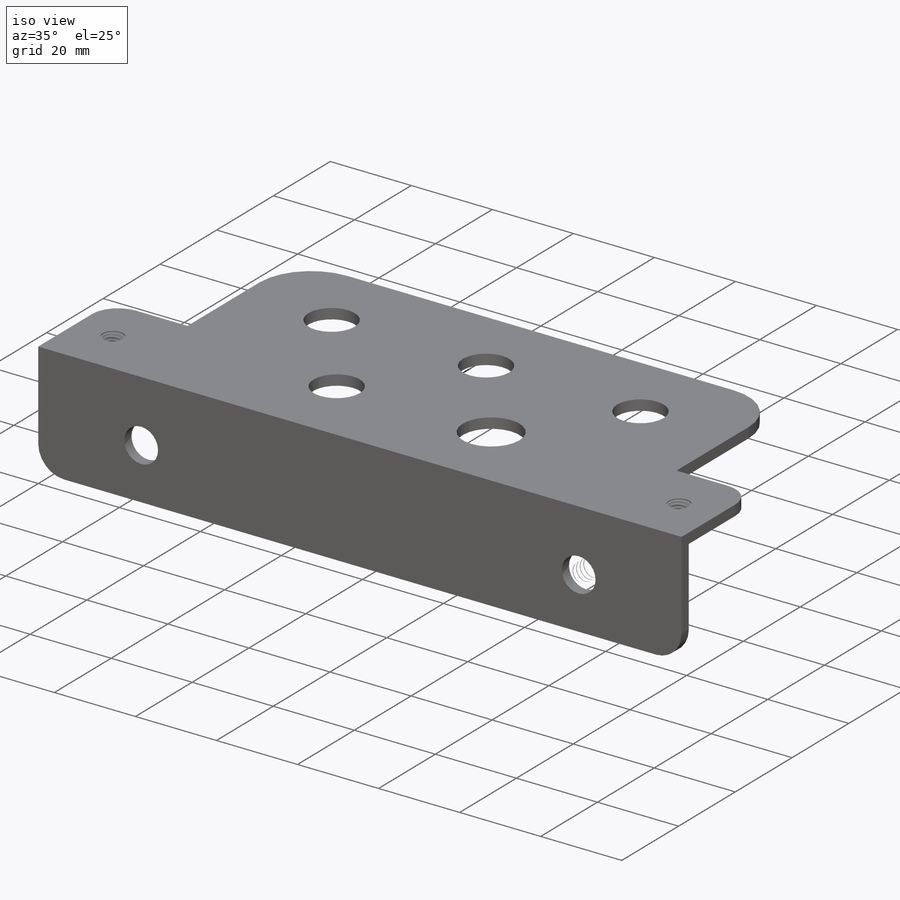
[diagram: iso view]
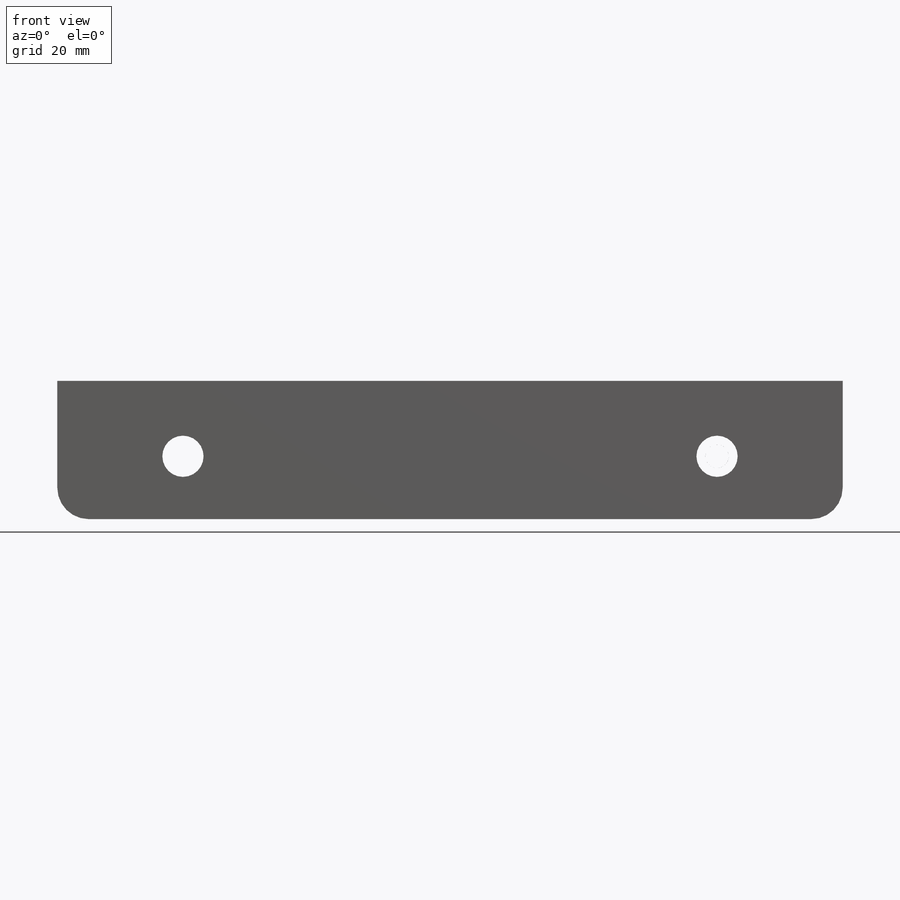
[diagram: front view]
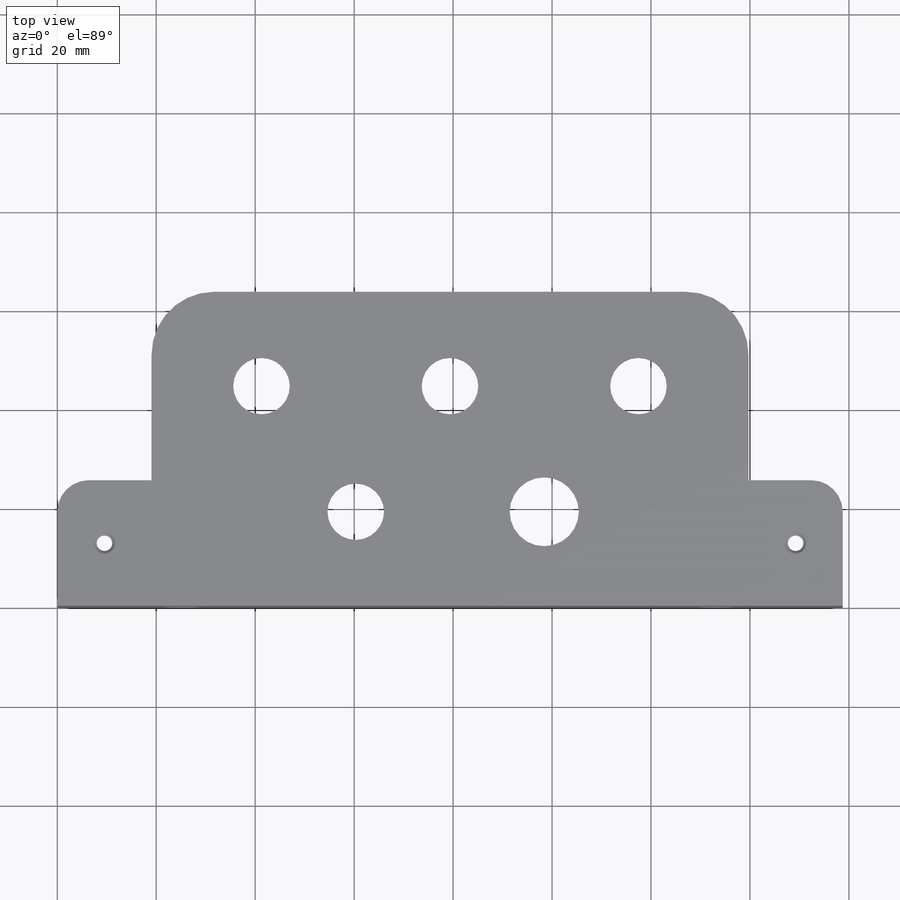
[diagram: top view]
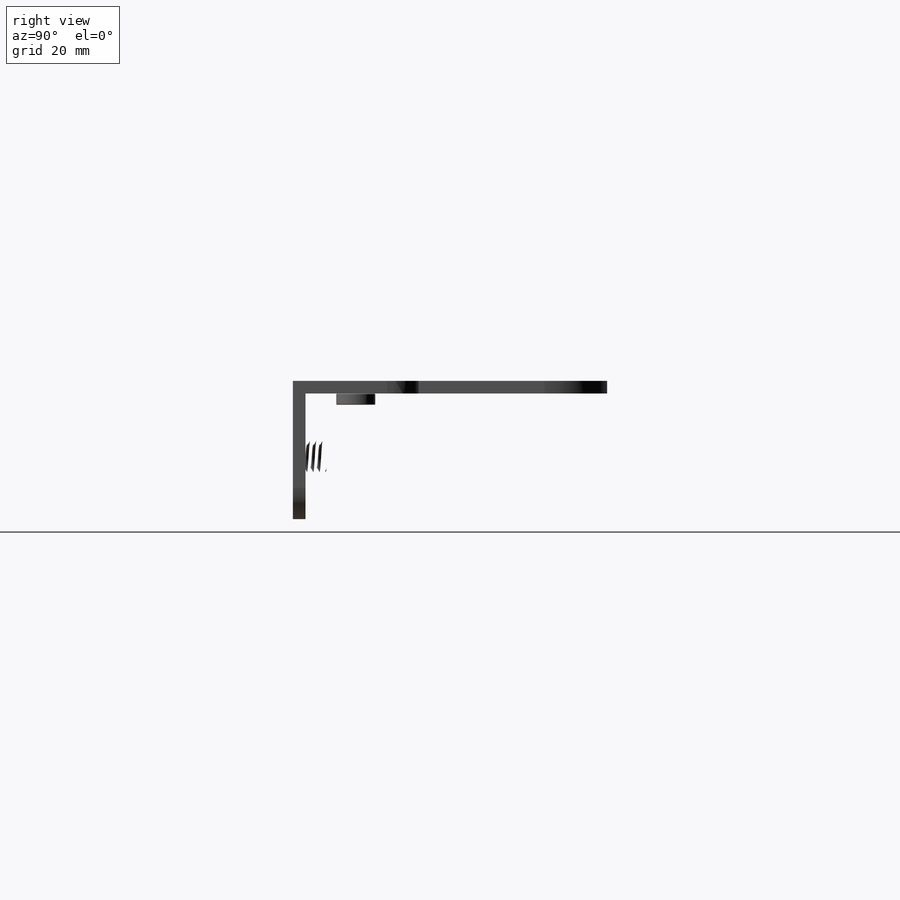
[diagram: right view]
SOLIDWORKS PART (.sldprt)
format: sldprt  version: not decoded by parser v0  size: 2,065,408 bytes
history: native  units: mm
features: move_body x4, sketch x3, extrude x2, fillet x2, material x1, cut_extrude x1 + 4 further entries (+32 scaffold rows collapsed; 20 parser-record rows omitted)
feature tree (69):
  scaffold x32  (default folders/planes/origin — collapsed)
  material  "Material <not specified>"
  sketch  "Sketch1"  dims[c1.D8=5.08mm c1.D12=5.08mm c1.D13=13.97mm c1.D14=11.43mm c2.D13=13.97mm c2.D1=25.4mm c2.D2=19.05mm c2.D3=63.5mm c2.D4=158.75mm c2.D5=19.05mm c2.D6=25.4mm c2.D7=44.45mm c2.D8=95.25mm c2.D9=114.3mm c2.D10=19.05mm c2.D11=44.45mm c2.D15=95.25mm c2.D16=76.2mm c2.D17=38.1mm c3.D7=38.1mm c3.D15=9.525mm c3.D18=12.7mm c3.D19=9.525mm c3.D9=38.1mm c3.D16=38.1mm]
  extrude  "Boss-Extrude1"  Depth=2.54mm
  sketch  "Sketch2"  dims[D1=2.54mm]
  extrude  "Boss-Extrude2"  Depth=25.4mm
  "96439A360"
  parser-record x20  (decoder bookkeeping rows leaked as tree rows — omitted from the tree; the rows remain in map.json)
  move_body  "Body-Move/Copy2"
  "96439A3602"
  move_body  "Body-Move/Copy4"
  sketch  "Sketch3"  dims[D1=8.3312mm D2=25.4mm D3=25.4mm]
  cut_extrude  "Cut-Extrude1"  Depth=25.4mm
  "96439A610"
  move_body  "Body-Move/Copy6"
  "96439A6102"
  move_body  "Body-Move/Copy8"
  fillet  "Fillet1"  Radius=6.35mm
  fillet  "Fillet2"  Radius=12.7mm
decode coverage: 8 of 12 modeling features carry decoded parameters; 4 rows unclassified (native names shown)
note: suppression state not decoded; provenance and decode notes live in map.json
